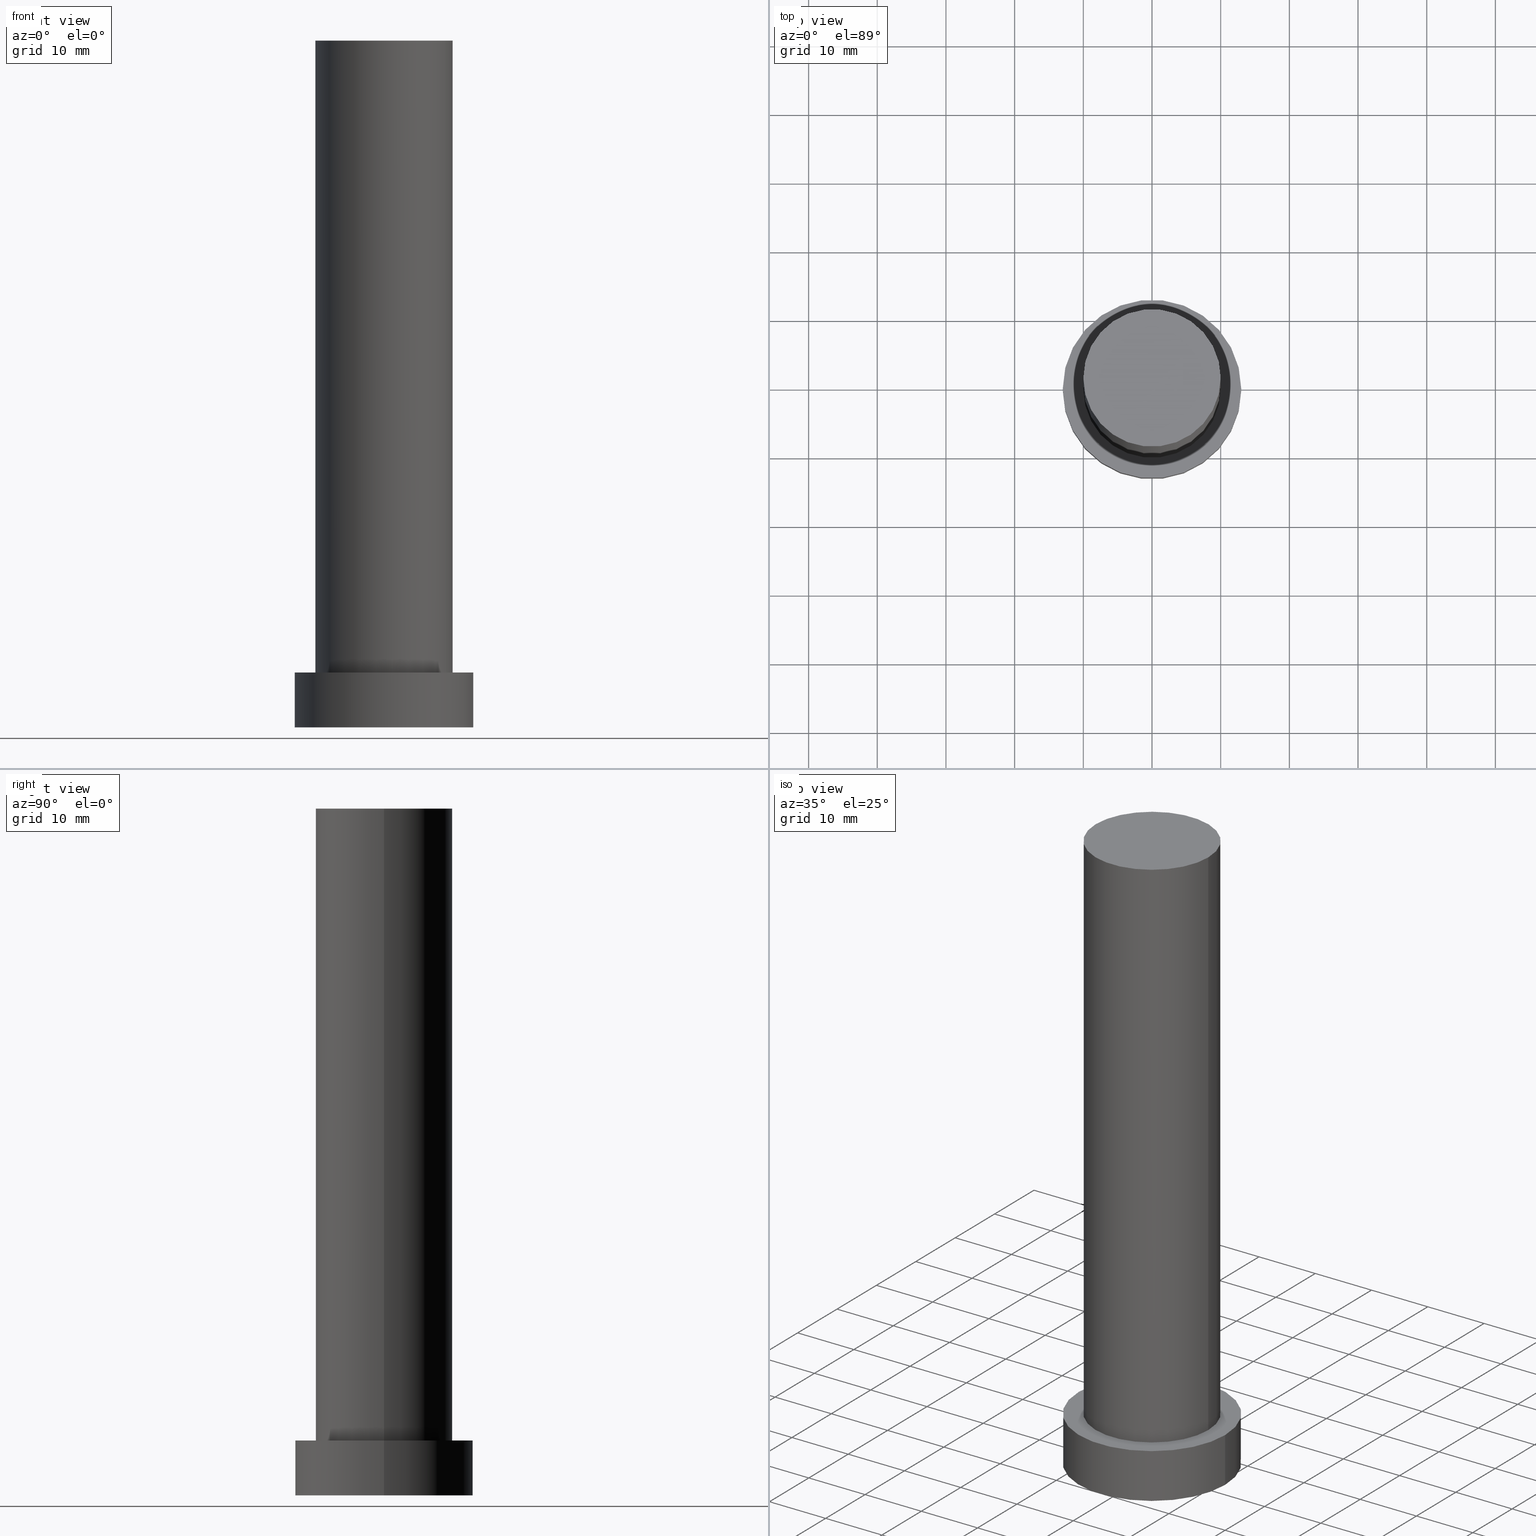
[diagram: canonical four-view strip — front | top / right | iso, engineering-drawing reading convention]
A machine part, canonical four-view strip (front | top / right | iso — engineering-drawing reading convention). The complete STEP part file that produces these views, byte-faithful:
ISO-10303-21;
HEADER;
FILE_DESCRIPTION (( 'STEP AP203' ),
    '1' );
FILE_NAME ('1180.STEP',
    '2023-02-13T07:49:49',
    ( '' ),
    ( '' ),
    'SwSTEP 2.0',
    'SolidWorks 2019',
    '' );
FILE_SCHEMA (( 'CONFIG_CONTROL_DESIGN' ));
ENDSEC;

DATA;
#1 = DIRECTION ( 'NONE',  ( 1.000000000000000000, 0.000000000000000000, -0.000000000000000000 ) ) ;
#2 = ORIENTED_EDGE ( 'NONE', *, *, #210, .F. ) ;
#3 = EDGE_LOOP ( 'NONE', ( #216, #159 ) ) ;
#4 = AXIS2_PLACEMENT_3D ( 'NONE', #30, #250, #51 ) ;
#5 = VERTEX_POINT ( 'NONE', #103 ) ;
#6 = VECTOR ( 'NONE', #176, 1000.000000000000000 ) ;
#7 = DIRECTION ( 'NONE',  ( 1.000000000000000000, 0.000000000000000000, 0.000000000000000000 ) ) ;
#8 = CARTESIAN_POINT ( 'NONE',  ( 13.00000000000000178, 1.592040838891559293E-15, 0.000000000000000000 ) ) ;
#9 = VECTOR ( 'NONE', #172, 1000.000000000000000 ) ;
#10 = SECURITY_CLASSIFICATION ( '', '', #25 ) ;
#11 = FACE_OUTER_BOUND ( 'NONE', #215, .T. ) ;
#12 = PRODUCT_DEFINITION ( 'NEZN�M�', '', #91, #126 ) ;
#13 = ORIENTED_EDGE ( 'NONE', *, *, #22, .F. ) ;
#14 = CARTESIAN_POINT ( 'NONE',  ( 0.000000000000000000, 0.000000000000000000, 100.0000000000000000 ) ) ;
#15 = CIRCLE ( 'NONE', #4, 10.00000000000000000 ) ;
#16 = APPROVAL_PERSON_ORGANIZATION ( #87, #203, #219 ) ;
#17 = EDGE_CURVE ( 'NONE', #133, #18, #218, .T. ) ;
#18 = VERTEX_POINT ( 'NONE', #124 ) ;
#19 = CARTESIAN_POINT ( 'NONE',  ( 0.000000000000000000, 0.000000000000000000, 8.000000000000000000 ) ) ;
#20 = APPROVAL_PERSON_ORGANIZATION ( #245, #240, #169 ) ;
#21 = DIRECTION ( 'NONE',  ( 1.000000000000000000, 0.000000000000000000, 0.000000000000000000 ) ) ;
#22 = EDGE_CURVE ( 'NONE', #130, #18, #192, .T. ) ;
#23 = DATE_AND_TIME ( #115, #26 ) ;
#24 = CARTESIAN_POINT ( 'NONE',  ( -13.00000000000000178, 0.000000000000000000, 8.000000000000000000 ) ) ;
#25 = SECURITY_CLASSIFICATION_LEVEL ( 'unclassified' ) ;
#26 = LOCAL_TIME ( 8, 49, 49.00000000000000000, #45 ) ;
#27 = ORIENTED_EDGE ( 'NONE', *, *, #174, .T. ) ;
#28 = CC_DESIGN_PERSON_AND_ORGANIZATION_ASSIGNMENT ( #42, #244, ( #10 ) ) ;
#29 = EDGE_LOOP ( 'NONE', ( #151, #181, #131, #153 ) ) ;
#30 = CARTESIAN_POINT ( 'NONE',  ( 0.000000000000000000, 0.000000000000000000, 8.000000000000000000 ) ) ;
#31 = APPROVAL_DATE_TIME ( #49, #240 ) ;
#32 = DIRECTION ( 'NONE',  ( -0.000000000000000000, -0.000000000000000000, -1.000000000000000000 ) ) ;
#33 = CYLINDRICAL_SURFACE ( 'NONE', #144, 10.00000000000000000 ) ;
#34 = DIRECTION ( 'NONE',  ( 0.000000000000000000, 0.000000000000000000, 1.000000000000000000 ) ) ;
#35 = ORIENTED_EDGE ( 'NONE', *, *, #231, .F. ) ;
#36 = ORIENTED_EDGE ( 'NONE', *, *, #81, .T. ) ;
#37 = ORIENTED_EDGE ( 'NONE', *, *, #17, .F. ) ;
#38 = ADVANCED_FACE ( 'NONE', ( #11 ), #101, .T. ) ;
#39 = AXIS2_PLACEMENT_3D ( 'NONE', #75, #53, #102 ) ;
#40 = PLANE ( 'NONE',  #183 ) ;
#41 = ORIENTED_EDGE ( 'NONE', *, *, #17, .T. ) ;
#42 = PERSON_AND_ORGANIZATION ( #148, #112 ) ;
#43 = ORIENTED_EDGE ( 'NONE', *, *, #80, .F. ) ;
#44 = DIRECTION ( 'NONE',  ( 0.000000000000000000, 0.000000000000000000, 1.000000000000000000 ) ) ;
#45 = COORDINATED_UNIVERSAL_TIME_OFFSET ( 1, 0, .AHEAD. ) ;
#46 = DATE_TIME_ROLE ( 'creation_date' ) ;
#47 = DATE_AND_TIME ( #224, #55 ) ;
#48 = EDGE_CURVE ( 'NONE', #58, #5, #230, .T. ) ;
#49 = DATE_AND_TIME ( #142, #164 ) ;
#50 = DIRECTION ( 'NONE',  ( 1.000000000000000000, 0.000000000000000000, -0.000000000000000000 ) ) ;
#51 = DIRECTION ( 'NONE',  ( 1.000000000000000000, 0.000000000000000000, 0.000000000000000000 ) ) ;
#52 = EDGE_LOOP ( 'NONE', ( #198, #238, #165, #135 ) ) ;
#53 = DIRECTION ( 'NONE',  ( 0.000000000000000000, 0.000000000000000000, 1.000000000000000000 ) ) ;
#54 = CARTESIAN_POINT ( 'NONE',  ( -10.00000000000000000, 0.000000000000000000, 100.0000000000000000 ) ) ;
#55 = LOCAL_TIME ( 8, 49, 49.00000000000000000, #67 ) ;
#56 = DIRECTION ( 'NONE',  ( -0.000000000000000000, -0.000000000000000000, -1.000000000000000000 ) ) ;
#57 = DIRECTION ( 'NONE',  ( 0.000000000000000000, 0.000000000000000000, 1.000000000000000000 ) ) ;
#58 = VERTEX_POINT ( 'NONE', #8 ) ;
#59 = AXIS2_PLACEMENT_3D ( 'NONE', #178, #57, #108 ) ;
#60 = PLANE ( 'NONE',  #156 ) ;
#61 = ADVANCED_FACE ( 'NONE', ( #152 ), #209, .T. ) ;
#62 = FACE_OUTER_BOUND ( 'NONE', #29, .T. ) ;
#63 = APPROVAL_DATE_TIME ( #66, #107 ) ;
#64 = APPLICATION_CONTEXT ( 'configuration controlled 3d designs of mechanical parts and assemblies' ) ;
#65 = AXIS2_PLACEMENT_3D ( 'NONE', #171, #56, #86 ) ;
#66 = DATE_AND_TIME ( #185, #196 ) ;
#67 = COORDINATED_UNIVERSAL_TIME_OFFSET ( 1, 0, .AHEAD. ) ;
#68 = APPROVAL_STATUS ( 'not_yet_approved' ) ;
#69 = VECTOR ( 'NONE', #232, 1000.000000000000000 ) ;
#70 = DIRECTION ( 'NONE',  ( 0.000000000000000000, 0.000000000000000000, 1.000000000000000000 ) ) ;
#71 = CIRCLE ( 'NONE', #117, 13.00000000000000178 ) ;
#72 = CARTESIAN_POINT ( 'NONE',  ( 0.000000000000000000, 0.000000000000000000, 8.000000000000000000 ) ) ;
#73 = EDGE_CURVE ( 'NONE', #18, #133, #15, .T. ) ;
#74 = UNCERTAINTY_MEASURE_WITH_UNIT (LENGTH_MEASURE( 1.000000000000000082E-05 ), #93, 'distance_accuracy_value', 'NONE');
#75 = CARTESIAN_POINT ( 'NONE',  ( 0.000000000000000000, 0.000000000000000000, 8.000000000000000000 ) ) ;
#76 = ADVANCED_FACE ( 'NONE', ( #89 ), #33, .T. ) ;
#77 = CARTESIAN_POINT ( 'NONE',  ( 10.00000000000000000, 1.224646799147353256E-15, 8.000000000000000000 ) ) ;
#78 = PERSON_AND_ORGANIZATION ( #148, #112 ) ;
#79 = VERTEX_POINT ( 'NONE', #99 ) ;
#80 = EDGE_CURVE ( 'NONE', #143, #130, #225, .T. ) ;
#81 = EDGE_CURVE ( 'NONE', #79, #58, #170, .T. ) ;
#82 = AXIS2_PLACEMENT_3D ( 'NONE', #14, #127, #146 ) ;
#83 = DIRECTION ( 'NONE',  ( -1.000000000000000000, 0.000000000000000000, 0.000000000000000000 ) ) ;
#84 = AXIS2_PLACEMENT_3D ( 'NONE', #168, #252, #247 ) ;
#85 = CARTESIAN_POINT ( 'NONE',  ( -10.00000000000000000, 0.000000000000000000, 100.0000000000000000 ) ) ;
#86 = DIRECTION ( 'NONE',  ( -1.000000000000000000, 0.000000000000000000, 0.000000000000000000 ) ) ;
#87 = PERSON_AND_ORGANIZATION ( #148, #112 ) ;
#88 = EDGE_CURVE ( 'NONE', #212, #79, #205, .T. ) ;
#89 = FACE_OUTER_BOUND ( 'NONE', #52, .T. ) ;
#90 = CIRCLE ( 'NONE', #241, 10.00000000000000000 ) ;
#91 = PRODUCT_DEFINITION_FORMATION_WITH_SPECIFIED_SOURCE ( 'LIBOVOLN�', '', #109, .NOT_KNOWN. ) ;
#92 = CARTESIAN_POINT ( 'NONE',  ( 10.00000000000000000, 1.224646799147353256E-15, 100.0000000000000000 ) ) ;
#93 =( LENGTH_UNIT ( ) NAMED_UNIT ( * ) SI_UNIT ( .MILLI., .METRE. ) );
#94 = LINE ( 'NONE', #24, #6 ) ;
#95 = PERSON_AND_ORGANIZATION ( #148, #112 ) ;
#96 = ORIENTED_EDGE ( 'NONE', *, *, #73, .F. ) ;
#97 = CARTESIAN_POINT ( 'NONE',  ( 0.000000000000000000, 0.000000000000000000, 0.000000000000000000 ) ) ;
#98 =( GEOMETRIC_REPRESENTATION_CONTEXT ( 3 ) GLOBAL_UNCERTAINTY_ASSIGNED_CONTEXT ( ( #74 ) ) GLOBAL_UNIT_ASSIGNED_CONTEXT ( ( #93, #158, #217 ) ) REPRESENTATION_CONTEXT ( 'NONE', 'WORKASPACE' ) );
#99 = CARTESIAN_POINT ( 'NONE',  ( 13.00000000000000178, 1.592040838891559293E-15, 8.000000000000000000 ) ) ;
#100 = PRODUCT_RELATED_PRODUCT_CATEGORY ( 'detail', '', ( #109 ) ) ;
#101 = CYLINDRICAL_SURFACE ( 'NONE', #82, 10.00000000000000000 ) ;
#102 = DIRECTION ( 'NONE',  ( 1.000000000000000000, 0.000000000000000000, 0.000000000000000000 ) ) ;
#103 = CARTESIAN_POINT ( 'NONE',  ( -13.00000000000000178, 0.000000000000000000, 0.000000000000000000 ) ) ;
#104 = DIRECTION ( 'NONE',  ( 0.000000000000000000, 0.000000000000000000, 1.000000000000000000 ) ) ;
#105 = ORIENTED_EDGE ( 'NONE', *, *, #48, .F. ) ;
#106 = AXIS2_PLACEMENT_3D ( 'NONE', #72, #34, #193 ) ;
#107 = APPROVAL ( #68, 'NEUR�EN�' ) ;
#108 = DIRECTION ( 'NONE',  ( 1.000000000000000000, 0.000000000000000000, 0.000000000000000000 ) ) ;
#109 = PRODUCT ( '1180', '1180', '', ( #214 ) ) ;
#110 = COORDINATED_UNIVERSAL_TIME_OFFSET ( 1, 0, .AHEAD. ) ;
#111 = AXIS2_PLACEMENT_3D ( 'NONE', #122, #104, #50 ) ;
#112 = ORGANIZATION ( 'NEUR�EN�', 'NEUR�EN�', '' ) ;
#113 = DIRECTION ( 'NONE',  ( 0.000000000000000000, 0.000000000000000000, 1.000000000000000000 ) ) ;
#114 = CC_DESIGN_PERSON_AND_ORGANIZATION_ASSIGNMENT ( #140, #222, ( #91 ) ) ;
#115 = CALENDAR_DATE ( 2023, 13, 2 ) ;
#116 = APPROVAL_ROLE ( '' ) ;
#117 = AXIS2_PLACEMENT_3D ( 'NONE', #167, #70, #145 ) ;
#118 = AXIS2_PLACEMENT_3D ( 'NONE', #213, #113, #21 ) ;
#119 = PERSON_AND_ORGANIZATION_ROLE ( 'creator' ) ;
#120 = COORDINATED_UNIVERSAL_TIME_OFFSET ( 1, 0, .AHEAD. ) ;
#121 = EDGE_LOOP ( 'NONE', ( #186, #36, #132, #2 ) ) ;
#122 = CARTESIAN_POINT ( 'NONE',  ( 0.000000000000000000, 0.000000000000000000, 8.000000000000000000 ) ) ;
#123 = FACE_OUTER_BOUND ( 'NONE', #3, .T. ) ;
#124 = CARTESIAN_POINT ( 'NONE',  ( -10.00000000000000000, 0.000000000000000000, 8.000000000000000000 ) ) ;
#125 = APPROVAL_STATUS ( 'not_yet_approved' ) ;
#126 = DESIGN_CONTEXT ( 'detailed design', #64, 'design' ) ;
#127 = DIRECTION ( 'NONE',  ( -0.000000000000000000, -0.000000000000000000, -1.000000000000000000 ) ) ;
#128 = LOCAL_TIME ( 8, 49, 49.00000000000000000, #204 ) ;
#129 = CARTESIAN_POINT ( 'NONE',  ( 13.00000000000000178, 1.592040838891559293E-15, 8.000000000000000000 ) ) ;
#130 = VERTEX_POINT ( 'NONE', #54 ) ;
#131 = ORIENTED_EDGE ( 'NONE', *, *, #210, .T. ) ;
#132 = ORIENTED_EDGE ( 'NONE', *, *, #48, .T. ) ;
#133 = VERTEX_POINT ( 'NONE', #77 ) ;
#134 = DIRECTION ( 'NONE',  ( 0.000000000000000000, 0.000000000000000000, 1.000000000000000000 ) ) ;
#135 = ORIENTED_EDGE ( 'NONE', *, *, #73, .T. ) ;
#136 = DIRECTION ( 'NONE',  ( -1.000000000000000000, 0.000000000000000000, 0.000000000000000000 ) ) ;
#137 = PERSON_AND_ORGANIZATION_ROLE ( 'design_supplier' ) ;
#138 = ADVANCED_FACE ( 'NONE', ( #188, #123 ), #149, .T. ) ;
#139 = FACE_OUTER_BOUND ( 'NONE', #155, .T. ) ;
#140 = PERSON_AND_ORGANIZATION ( #148, #112 ) ;
#141 = EDGE_LOOP ( 'NONE', ( #27, #201 ) ) ;
#142 = CALENDAR_DATE ( 2023, 13, 2 ) ;
#143 = VERTEX_POINT ( 'NONE', #207 ) ;
#144 = AXIS2_PLACEMENT_3D ( 'NONE', #191, #32, #83 ) ;
#145 = DIRECTION ( 'NONE',  ( 1.000000000000000000, 0.000000000000000000, 0.000000000000000000 ) ) ;
#146 = DIRECTION ( 'NONE',  ( -1.000000000000000000, 0.000000000000000000, 0.000000000000000000 ) ) ;
#147 = DIRECTION ( 'NONE',  ( 0.000000000000000000, 0.000000000000000000, 1.000000000000000000 ) ) ;
#148 = PERSON ( 'NEUR�EN�', 'NEUR�EN�', 'NEUR�EN�', ('NEUR�EN�'), ('NEUR�EN�'), ('NEUR�EN�') ) ;
#149 = PLANE ( 'NONE',  #111 ) ;
#150 = AXIS2_PLACEMENT_3D ( 'NONE', #19, #235, #136 ) ;
#151 = ORIENTED_EDGE ( 'NONE', *, *, #81, .F. ) ;
#152 = FACE_OUTER_BOUND ( 'NONE', #121, .T. ) ;
#153 = ORIENTED_EDGE ( 'NONE', *, *, #231, .T. ) ;
#154 = CC_DESIGN_DATE_AND_TIME_ASSIGNMENT ( #162, #46, ( #12 ) ) ;
#155 = EDGE_LOOP ( 'NONE', ( #35, #105 ) ) ;
#156 = AXIS2_PLACEMENT_3D ( 'NONE', #236, #134, #1 ) ;
#157 = CC_DESIGN_APPROVAL ( #203, ( #12 ) ) ;
#158 =( NAMED_UNIT ( * ) PLANE_ANGLE_UNIT ( ) SI_UNIT ( $, .RADIAN. ) );
#159 = ORIENTED_EDGE ( 'NONE', *, *, #184, .T. ) ;
#160 = DIRECTION ( 'NONE',  ( 1.000000000000000000, 0.000000000000000000, -0.000000000000000000 ) ) ;
#161 = DIRECTION ( 'NONE',  ( -0.000000000000000000, -0.000000000000000000, -1.000000000000000000 ) ) ;
#162 = DATE_AND_TIME ( #237, #128 ) ;
#163 = DATE_TIME_ROLE ( 'classification_date' ) ;
#164 = LOCAL_TIME ( 8, 49, 49.00000000000000000, #120 ) ;
#165 = ORIENTED_EDGE ( 'NONE', *, *, #22, .T. ) ;
#166 = CC_DESIGN_PERSON_AND_ORGANIZATION_ASSIGNMENT ( #78, #119, ( #12 ) ) ;
#167 = CARTESIAN_POINT ( 'NONE',  ( 0.000000000000000000, 0.000000000000000000, 8.000000000000000000 ) ) ;
#168 = CARTESIAN_POINT ( 'NONE',  ( 0.000000000000000000, 0.000000000000000000, 100.0000000000000000 ) ) ;
#169 = APPROVAL_ROLE ( '' ) ;
#170 = LINE ( 'NONE', #129, #69 ) ;
#171 = CARTESIAN_POINT ( 'NONE',  ( 0.000000000000000000, 0.000000000000000000, 8.000000000000000000 ) ) ;
#172 = DIRECTION ( 'NONE',  ( -0.000000000000000000, -0.000000000000000000, -1.000000000000000000 ) ) ;
#173 = CLOSED_SHELL ( 'NONE', ( #38, #61, #226, #138, #246, #76, #228 ) ) ;
#174 = EDGE_CURVE ( 'NONE', #130, #143, #90, .T. ) ;
#175 = PERSON_AND_ORGANIZATION_ROLE ( 'design_owner' ) ;
#176 = DIRECTION ( 'NONE',  ( -0.000000000000000000, -0.000000000000000000, -1.000000000000000000 ) ) ;
#177 = APPLICATION_CONTEXT ( 'configuration controlled 3d designs of mechanical parts and assemblies' ) ;
#178 = CARTESIAN_POINT ( 'NONE',  ( 0.000000000000000000, 0.000000000000000000, 0.000000000000000000 ) ) ;
#179 = AXIS2_PLACEMENT_3D ( 'NONE', #249, #147, #229 ) ;
#180 = CC_DESIGN_DATE_AND_TIME_ASSIGNMENT ( #47, #163, ( #10 ) ) ;
#181 = ORIENTED_EDGE ( 'NONE', *, *, #88, .F. ) ;
#182 = LINE ( 'NONE', #92, #248 ) ;
#183 = AXIS2_PLACEMENT_3D ( 'NONE', #97, #44, #160 ) ;
#184 = EDGE_CURVE ( 'NONE', #79, #212, #71, .T. ) ;
#185 = CALENDAR_DATE ( 2023, 13, 2 ) ;
#186 = ORIENTED_EDGE ( 'NONE', *, *, #184, .F. ) ;
#187 = APPROVAL_PERSON_ORGANIZATION ( #95, #107, #116 ) ;
#188 = FACE_BOUND ( 'NONE', #223, .T. ) ;
#189 = SHAPE_DEFINITION_REPRESENTATION ( #200, #227 ) ;
#190 = MANIFOLD_SOLID_BREP ( 'P�idat vysunut�m3', #173 ) ;
#191 = CARTESIAN_POINT ( 'NONE',  ( 0.000000000000000000, 0.000000000000000000, 100.0000000000000000 ) ) ;
#192 = LINE ( 'NONE', #85, #9 ) ;
#193 = DIRECTION ( 'NONE',  ( 1.000000000000000000, 0.000000000000000000, 0.000000000000000000 ) ) ;
#194 = APPLICATION_PROTOCOL_DEFINITION ( 'international standard', 'config_control_design', 1994, #64 ) ;
#195 = CARTESIAN_POINT ( 'NONE',  ( 0.000000000000000000, 0.000000000000000000, 100.0000000000000000 ) ) ;
#196 = LOCAL_TIME ( 8, 49, 49.00000000000000000, #110 ) ;
#197 = CARTESIAN_POINT ( 'NONE',  ( -13.00000000000000178, 0.000000000000000000, 8.000000000000000000 ) ) ;
#198 = ORIENTED_EDGE ( 'NONE', *, *, #199, .F. ) ;
#199 = EDGE_CURVE ( 'NONE', #143, #133, #182, .T. ) ;
#200 = PRODUCT_DEFINITION_SHAPE ( 'NONE', 'NONE',  #12 ) ;
#201 = ORIENTED_EDGE ( 'NONE', *, *, #80, .T. ) ;
#202 = PERSON_AND_ORGANIZATION ( #148, #112 ) ;
#203 = APPROVAL ( #233, 'NEUR�EN�' ) ;
#204 = COORDINATED_UNIVERSAL_TIME_OFFSET ( 1, 0, .AHEAD. ) ;
#205 = CIRCLE ( 'NONE', #39, 13.00000000000000178 ) ;
#206 = DIRECTION ( 'NONE',  ( 0.000000000000000000, 0.000000000000000000, 1.000000000000000000 ) ) ;
#207 = CARTESIAN_POINT ( 'NONE',  ( 10.00000000000000000, 1.224646799147353256E-15, 100.0000000000000000 ) ) ;
#208 = CIRCLE ( 'NONE', #118, 13.00000000000000178 ) ;
#209 = CYLINDRICAL_SURFACE ( 'NONE', #65, 13.00000000000000178 ) ;
#210 = EDGE_CURVE ( 'NONE', #212, #5, #94, .T. ) ;
#211 = PERSON_AND_ORGANIZATION ( #148, #112 ) ;
#212 = VERTEX_POINT ( 'NONE', #197 ) ;
#213 = CARTESIAN_POINT ( 'NONE',  ( 0.000000000000000000, 0.000000000000000000, 0.000000000000000000 ) ) ;
#214 = MECHANICAL_CONTEXT ( 'NONE', #177, 'mechanical' ) ;
#215 = EDGE_LOOP ( 'NONE', ( #43, #253, #41, #13 ) ) ;
#216 = ORIENTED_EDGE ( 'NONE', *, *, #88, .T. ) ;
#217 =( NAMED_UNIT ( * ) SI_UNIT ( $, .STERADIAN. ) SOLID_ANGLE_UNIT ( ) );
#218 = CIRCLE ( 'NONE', #106, 10.00000000000000000 ) ;
#219 = APPROVAL_ROLE ( '' ) ;
#220 = FACE_OUTER_BOUND ( 'NONE', #141, .T. ) ;
#221 = CC_DESIGN_PERSON_AND_ORGANIZATION_ASSIGNMENT ( #202, #137, ( #91 ) ) ;
#222 = PERSON_AND_ORGANIZATION_ROLE ( 'creator' ) ;
#223 = EDGE_LOOP ( 'NONE', ( #96, #37 ) ) ;
#224 = CALENDAR_DATE ( 2023, 13, 2 ) ;
#225 = CIRCLE ( 'NONE', #84, 10.00000000000000000 ) ;
#226 = ADVANCED_FACE ( 'NONE', ( #62 ), #255, .T. ) ;
#227 = ADVANCED_BREP_SHAPE_REPRESENTATION ( '1180', ( #190, #59 ), #98 ) ;
#228 = ADVANCED_FACE ( 'NONE', ( #220 ), #60, .T. ) ;
#229 = DIRECTION ( 'NONE',  ( 1.000000000000000000, 0.000000000000000000, 0.000000000000000000 ) ) ;
#230 = CIRCLE ( 'NONE', #179, 13.00000000000000178 ) ;
#231 = EDGE_CURVE ( 'NONE', #5, #58, #208, .T. ) ;
#232 = DIRECTION ( 'NONE',  ( -0.000000000000000000, -0.000000000000000000, -1.000000000000000000 ) ) ;
#233 = APPROVAL_STATUS ( 'not_yet_approved' ) ;
#234 = CC_DESIGN_APPROVAL ( #107, ( #91 ) ) ;
#235 = DIRECTION ( 'NONE',  ( -0.000000000000000000, -0.000000000000000000, -1.000000000000000000 ) ) ;
#236 = CARTESIAN_POINT ( 'NONE',  ( 0.000000000000000000, 0.000000000000000000, 100.0000000000000000 ) ) ;
#237 = CALENDAR_DATE ( 2023, 13, 2 ) ;
#238 = ORIENTED_EDGE ( 'NONE', *, *, #174, .F. ) ;
#239 = APPLICATION_PROTOCOL_DEFINITION ( 'international standard', 'config_control_design', 1994, #177 ) ;
#240 = APPROVAL ( #125, 'NEUR�EN�' ) ;
#241 = AXIS2_PLACEMENT_3D ( 'NONE', #195, #206, #7 ) ;
#242 = CC_DESIGN_SECURITY_CLASSIFICATION ( #10, ( #91 ) ) ;
#243 = APPROVAL_DATE_TIME ( #23, #203 ) ;
#244 = PERSON_AND_ORGANIZATION_ROLE ( 'classification_officer' ) ;
#245 = PERSON_AND_ORGANIZATION ( #148, #112 ) ;
#246 = ADVANCED_FACE ( 'NONE', ( #139 ), #40, .F. ) ;
#247 = DIRECTION ( 'NONE',  ( 1.000000000000000000, 0.000000000000000000, 0.000000000000000000 ) ) ;
#248 = VECTOR ( 'NONE', #161, 1000.000000000000000 ) ;
#249 = CARTESIAN_POINT ( 'NONE',  ( 0.000000000000000000, 0.000000000000000000, 0.000000000000000000 ) ) ;
#250 = DIRECTION ( 'NONE',  ( 0.000000000000000000, 0.000000000000000000, 1.000000000000000000 ) ) ;
#251 = CC_DESIGN_APPROVAL ( #240, ( #10 ) ) ;
#252 = DIRECTION ( 'NONE',  ( 0.000000000000000000, 0.000000000000000000, 1.000000000000000000 ) ) ;
#253 = ORIENTED_EDGE ( 'NONE', *, *, #199, .T. ) ;
#254 = CC_DESIGN_PERSON_AND_ORGANIZATION_ASSIGNMENT ( #211, #175, ( #109 ) ) ;
#255 = CYLINDRICAL_SURFACE ( 'NONE', #150, 13.00000000000000178 ) ;
ENDSEC;
END-ISO-10303-21;
